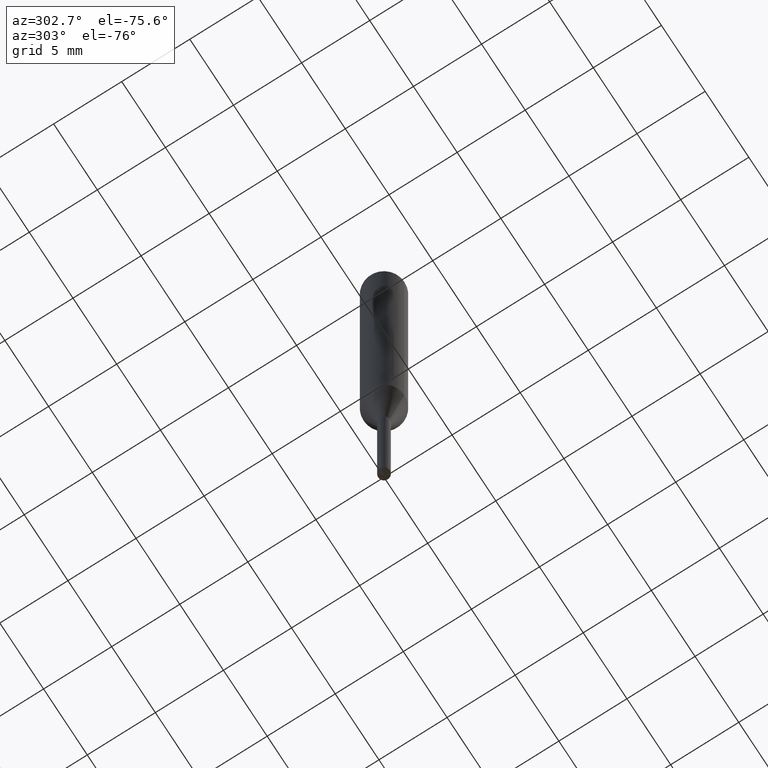
[diagram: clean part render]
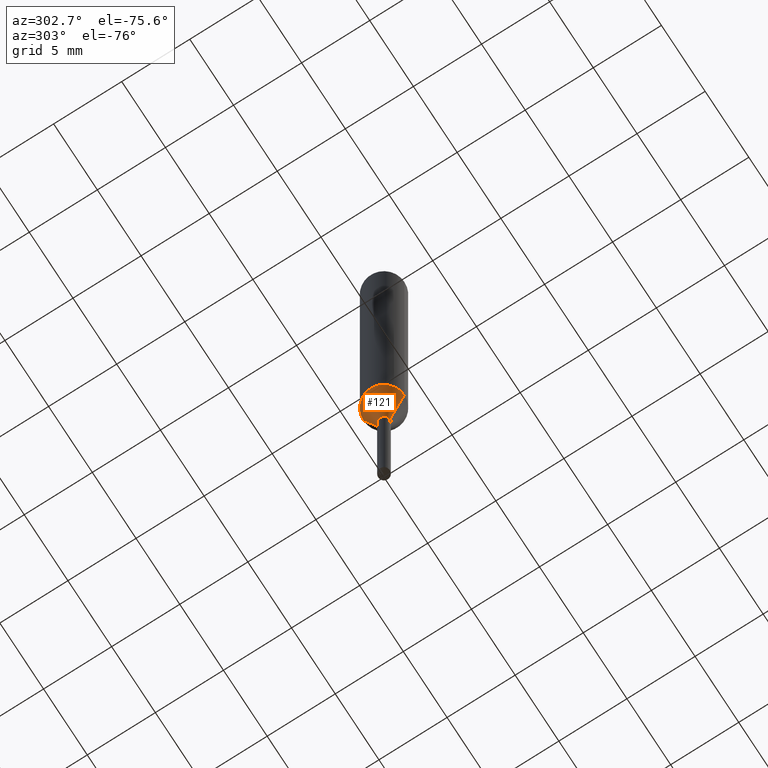
[diagram: same view with one face highlighted and labeled with its STEP entity id]
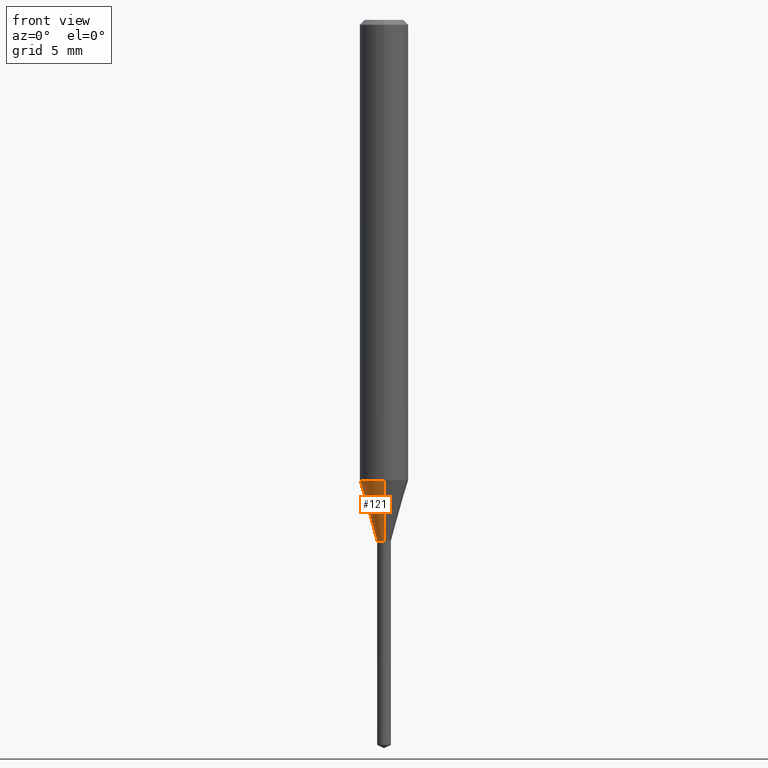
[diagram: same view with one face highlighted and labeled with its STEP entity id]
A machine part, auxiliary view. The second image highlights one B-rep face of the part: STEP entity #121.
A second angle (front view) of the same face is appended — the face is thin or edge-on in the first view.
In plain terms, the highlighted conical surface has half-angle 16.003 deg.
Its self-contained STEP definition (entity closure, byte-faithful):
#93=VERTEX_POINT('',#228);
#97=EDGE_CURVE('',#161,#93,#233,.T.);
#121=ADVANCED_FACE('',(#260),#261,.T.);
#123=EDGE_CURVE('',#161,#201,#263,.T.);
#147=EDGE_CURVE('',#93,#179,#291,.T.);
#161=VERTEX_POINT('',#306);
#179=VERTEX_POINT('',#326);
#183=EDGE_CURVE('',#179,#201,#330,.T.);
#201=VERTEX_POINT('',#350);
#228=CARTESIAN_POINT('',(1.83690953073357E-016,-1.5,-28.451));
#233=LINE('',#377,#378);
#260=FACE_OUTER_BOUND('',#407,.T.);
#261=CONICAL_SURFACE('',#408,0.9625,0.279311816116806);
#263=CIRCLE('',#411,0.425);
#291=CIRCLE('',#445,1.5);
#306=CARTESIAN_POINT('',(5.2045770037451E-017,-0.425,-32.1991339745962));
#326=CARTESIAN_POINT('',(0.0,1.5,-28.451));
#330=LINE('',#498,#499);
#350=CARTESIAN_POINT('',(0.0,0.425,-32.1991339745962));
#377=CARTESIAN_POINT('',(1.17868361555404E-016,-0.9625,-30.3250669872981));
#378=VECTOR('',#546,1.0);
#407=EDGE_LOOP('',(#577,#578,#579,#580));
#408=AXIS2_PLACEMENT_3D('',#581,#582,#583);
#411=AXIS2_PLACEMENT_3D('',#584,#585,#586);
#445=AXIS2_PLACEMENT_3D('',#622,#623,#624);
#498=CARTESIAN_POINT('',(-1.17868361555404E-016,0.9625,-30.3250669872981));
#499=VECTOR('',#668,1.0);
#546=DIRECTION('',(3.3761686941431E-017,-0.275694200312208,0.961245394222626));
#577=ORIENTED_EDGE('',*,*,#183,.T.);
#578=ORIENTED_EDGE('',*,*,#123,.F.);
#579=ORIENTED_EDGE('',*,*,#97,.T.);
#580=ORIENTED_EDGE('',*,*,#147,.T.);
#581=CARTESIAN_POINT('',(0.0,0.0,-30.3250669872981));
#582=DIRECTION('',(-0.0,-0.0,1.0));
#583=DIRECTION('',(0.0,1.0,0.0));
#584=CARTESIAN_POINT('',(0.0,0.0,-32.1991339745962));
#585=DIRECTION('',(0.0,0.0,-1.0));
#586=DIRECTION('',(0.0,1.0,0.0));
#622=CARTESIAN_POINT('',(0.0,0.0,-28.451));
#623=DIRECTION('',(0.0,0.0,-1.0));
#624=DIRECTION('',(0.0,1.0,0.0));
#668=DIRECTION('',(3.3761686941431E-017,-0.275694200312208,-0.961245394222626));